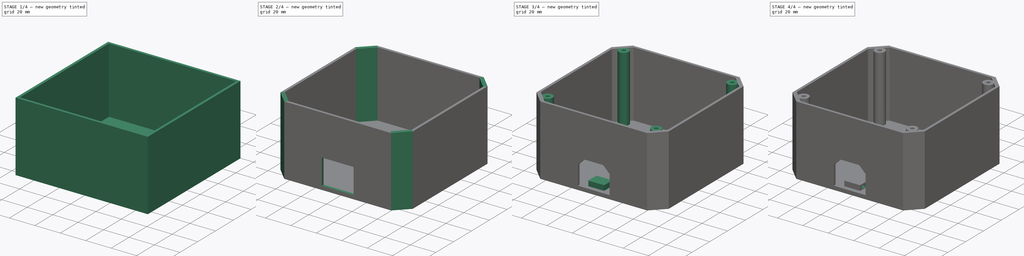
[diagram: build sequence overview — one tinted view per stage of 4, left to right]
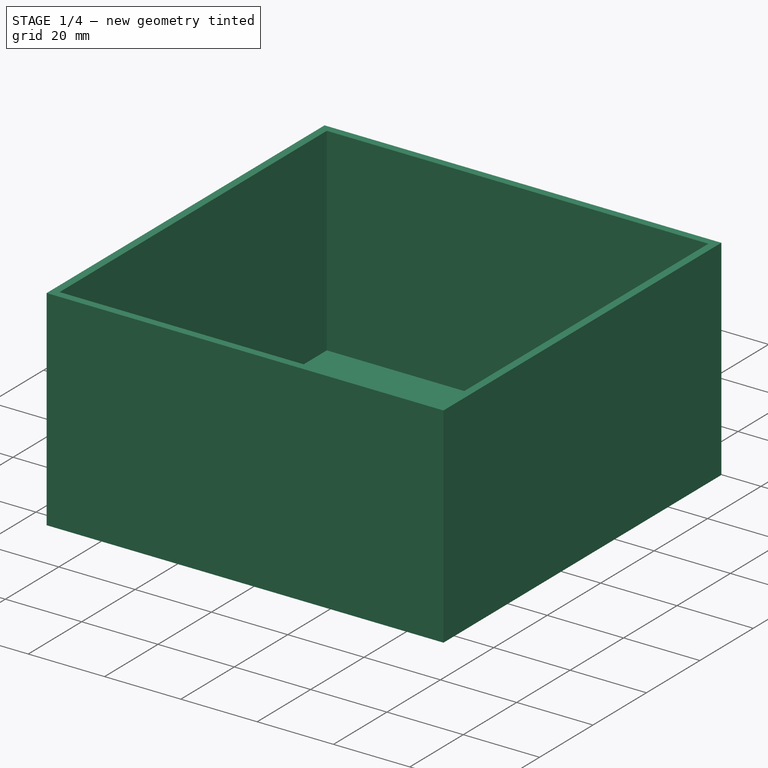
[diagram: stage 1 of 4 — iso view after this stage's code; geometry added in this stage tinted green]
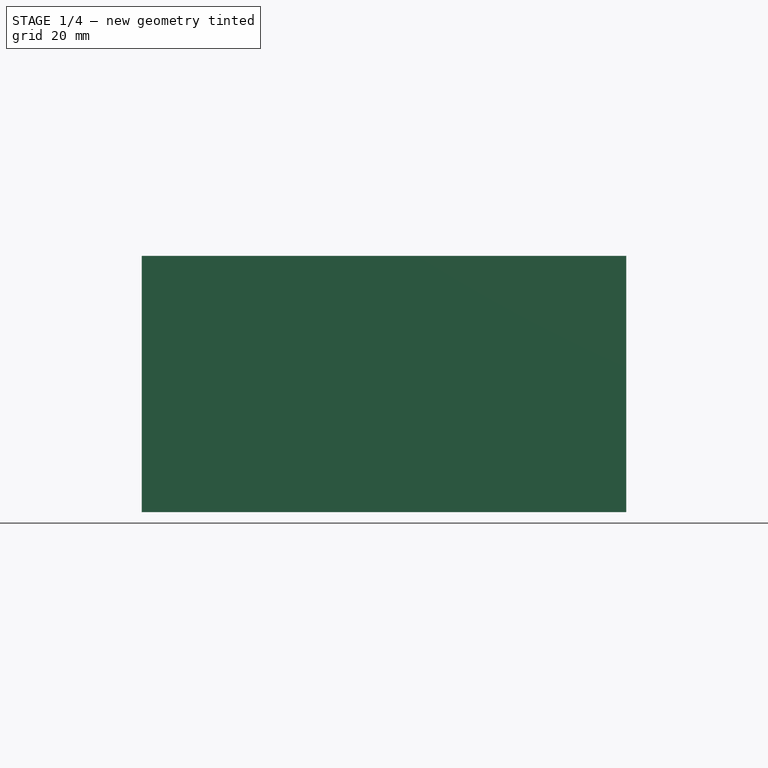
[diagram: stage 1 of 4 — front view after this stage's code; geometry added in this stage tinted green]
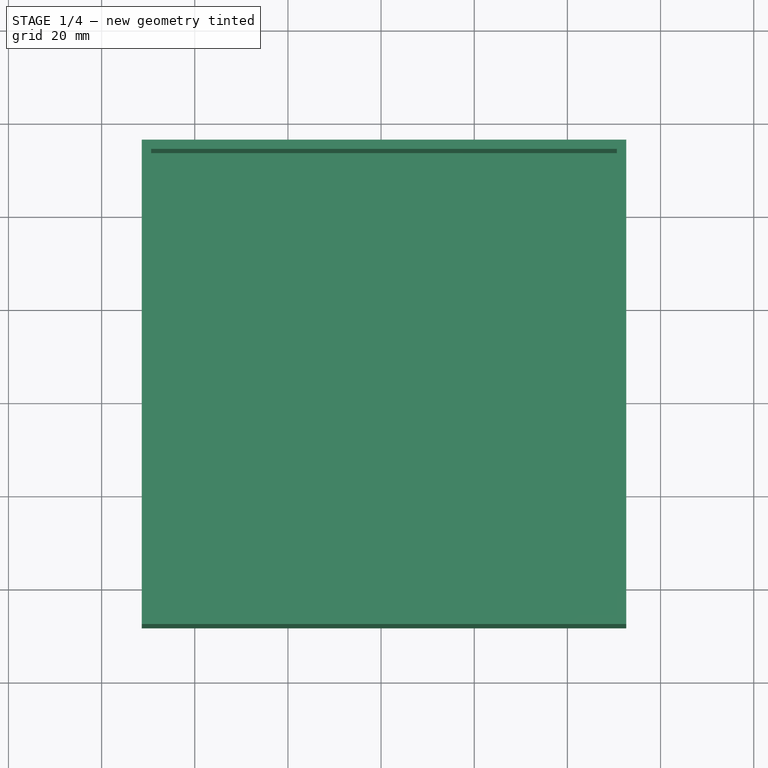
[diagram: stage 1 of 4 — top view after this stage's code; geometry added in this stage tinted green]
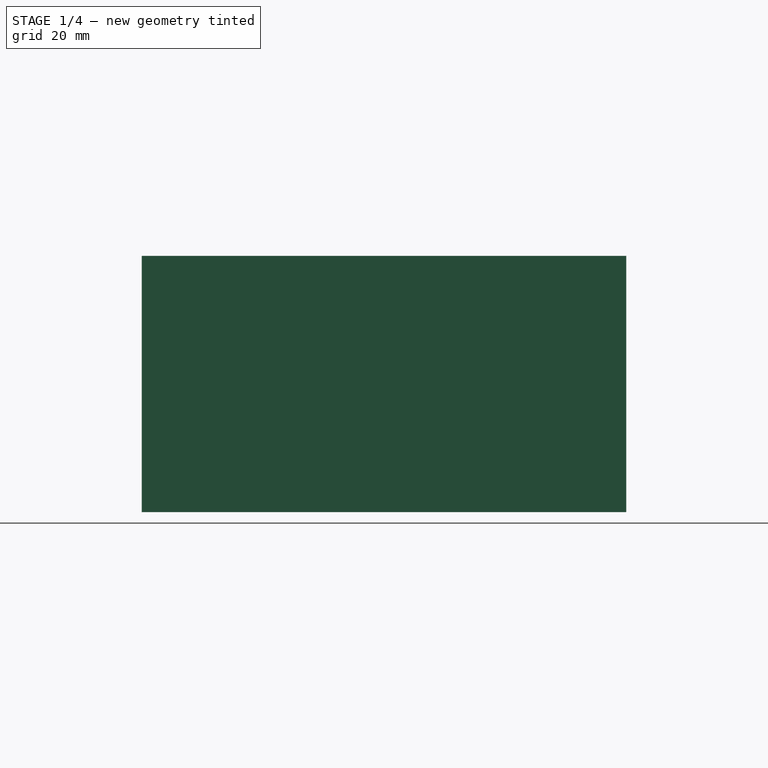
[diagram: stage 1 of 4 — right view after this stage's code; geometry added in this stage tinted green]
FCSTD DOCUMENT  (FreeCAD 0.16R5218 (Git))
Label: protecciones-mesaHerramientas
License: All rights reserved
LicenseURL: http://en.wikipedia.org/wiki/All_rights_reserved
objects: Sketcher::SketchObject×7, PartDesign::Pad×4, PartDesign::Pocket×3, PartDesign::Chamfer×2
note: 23 computed .brp shape members not serialized (recipe doc carries the construction recipe); baked Part::Feature solids carry a one-line shape summary decoded from their .brp

FEATURE [Sketcher::SketchObject] Sketch
  sketch-geometry (4):
    g0: LineSegment StartX=-51.3723 StartY=55.703 StartZ=0 EndX=52.6277 EndY=55.703 EndZ=0
    g1: LineSegment StartX=52.6277 StartY=55.703 StartZ=0 EndX=52.6277 EndY=-48.297 EndZ=0
    g2: LineSegment StartX=52.6277 StartY=-48.297 StartZ=0 EndX=-51.3723 EndY=-48.297 EndZ=0
    g3: LineSegment StartX=-51.3723 StartY=-48.297 StartZ=0 EndX=-51.3723 EndY=55.703 EndZ=0
  constraints (10):
    c: Coincident(g0,g1)
    c: Coincident(g1,g2)
    c: Coincident(g2,g3)
    c: Coincident(g3,g0)
    c: Horizontal(g0)
    c: Horizontal(g2)
    c: Vertical(g1)
    c: Vertical(g3)
    c: Equal(g1,g0)
    c: Distance(g0) = 104
FEATURE [PartDesign::Pad] Pad
  Length = 3
  Length2 = 100
  Sketch = -> Sketch
  Type = 0
FEATURE [Sketcher::SketchObject] Sketch001
  ExternalGeometry = -> [Pad]
  Placement = pos=(0,0,3) rot=(0,0,1;0rad)
  Support = -> Pad [Face6]
  sketch-geometry (10):
    g0: LineSegment StartX=52.6277 StartY=55.703 StartZ=0 EndX=-51.3723 EndY=55.703 EndZ=0
    g1: LineSegment StartX=-51.3723 StartY=55.703 StartZ=0 EndX=-51.3723 EndY=-48.297 EndZ=0
    g2: LineSegment StartX=-51.3723 StartY=-48.297 StartZ=0 EndX=52.6277 EndY=-48.297 EndZ=0
    g3: LineSegment StartX=52.6277 StartY=-48.297 StartZ=0 EndX=52.6277 EndY=55.703 EndZ=0
    g4: LineSegment StartX=-49.3723 StartY=-46.297 StartZ=0 EndX=50.6277 EndY=-46.297 EndZ=0
    g5: LineSegment StartX=50.6277 StartY=-46.297 StartZ=0 EndX=50.6277 EndY=53.703 EndZ=0
    g6: LineSegment StartX=50.6277 StartY=53.703 StartZ=0 EndX=-49.3723 EndY=53.703 EndZ=0
    g7: LineSegment StartX=-49.3723 StartY=53.703 StartZ=0 EndX=-49.3723 EndY=-46.297 EndZ=0
    g8: LineSegment [constr] StartX=52.6277 StartY=55.703 StartZ=0 EndX=50.6277 EndY=53.703 EndZ=0
    g9: LineSegment [constr] StartX=-51.3723 StartY=-48.297 StartZ=0 EndX=-49.3723 EndY=-46.297 EndZ=0
  constraints (26):
    c: Coincident(g0,g1)
    c: Coincident(g1,g2)
    c: Coincident(g2,g3)
    c: Coincident(g3,g0)
    c: Horizontal(g0)
    c: Horizontal(g2)
    c: Vertical(g1)
    c: Vertical(g3)
    c: Coincident(g0,g-4)
    c: Coincident(g1,g-3)
    c: Coincident(g4,g5)
    c: Coincident(g5,g6)
    c: Coincident(g6,g7)
    c: Coincident(g7,g4)
    c: Horizontal(g4)
    c: Horizontal(g6)
    c: Vertical(g5)
    c: Vertical(g7)
    c: Coincident(g8,g0)
    c: Coincident(g8,g5)
    c: Coincident(g9,g1)
    c: Coincident(g9,g4)
    c: Equal(g9,g8)
    c: Parallel(g9,g8)
    c: Equal(g5,g6)
    c: Distance(g5) = 100
FEATURE [PartDesign::Pad] Pad001
  Length = 52
  Length2 = 100
  Sketch = -> Sketch001
  Type = 0
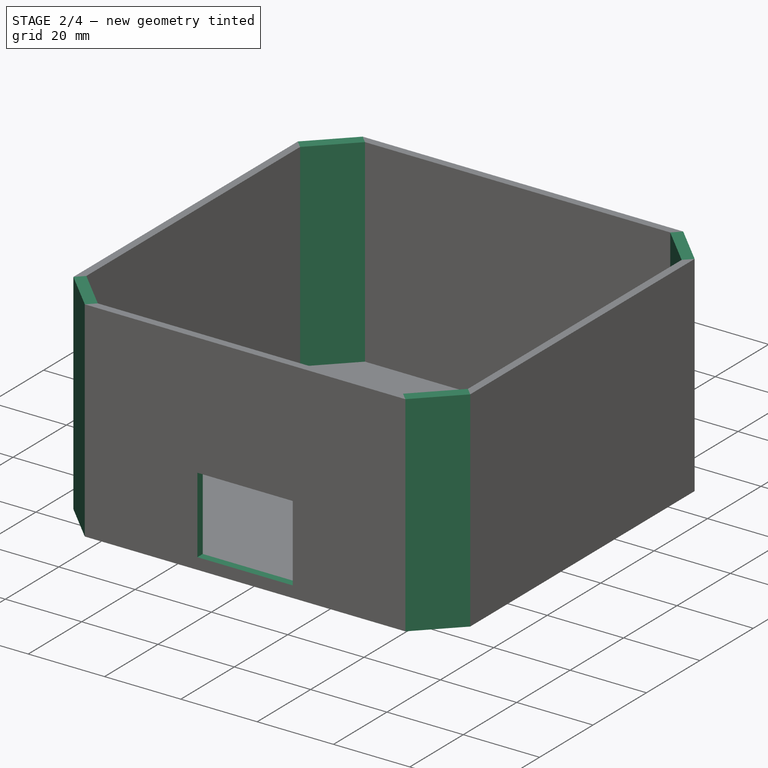
[diagram: stage 2 of 4 — iso view after this stage's code; geometry added in this stage tinted green]
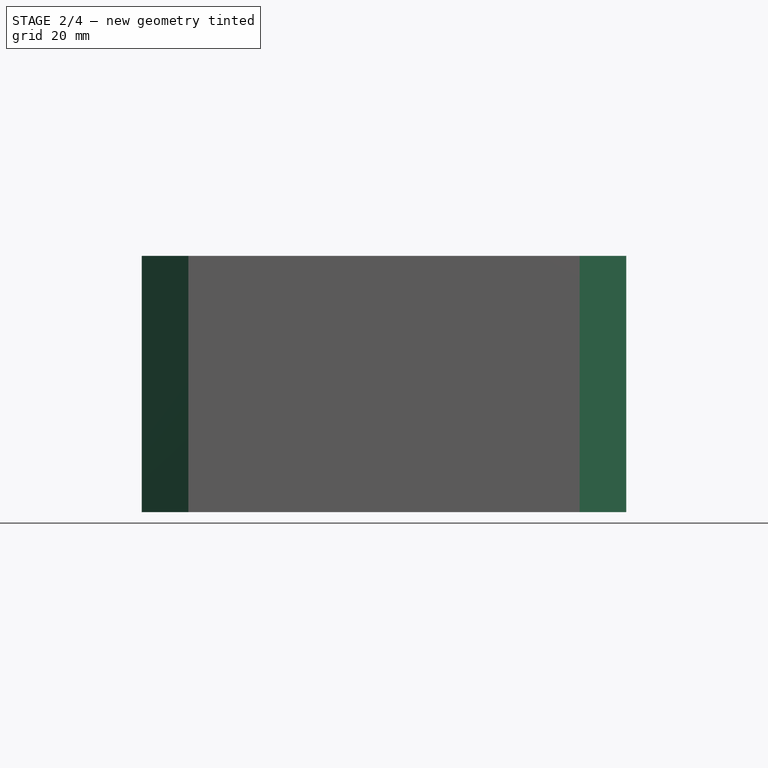
[diagram: stage 2 of 4 — front view after this stage's code; geometry added in this stage tinted green]
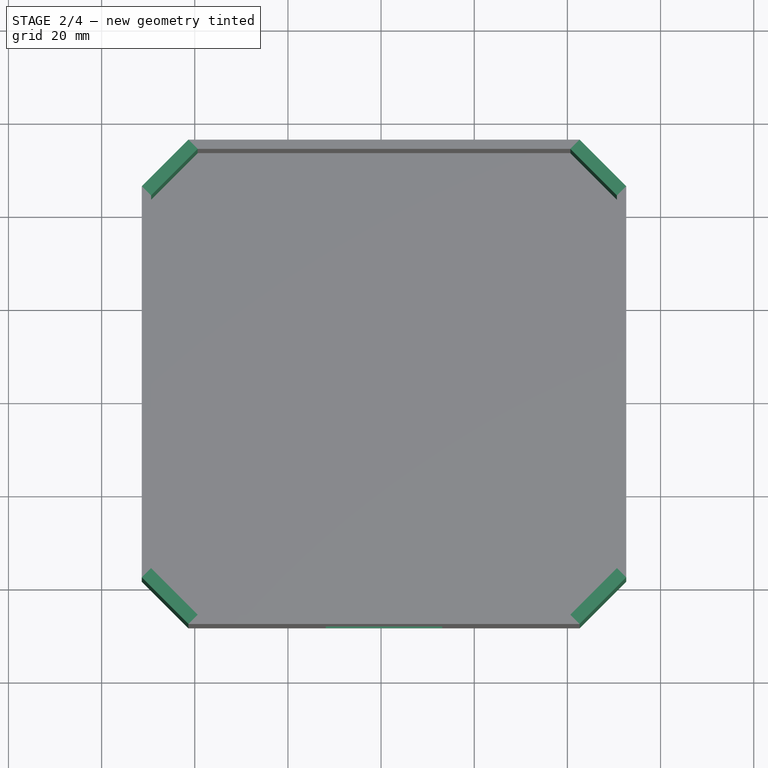
[diagram: stage 2 of 4 — top view after this stage's code; geometry added in this stage tinted green]
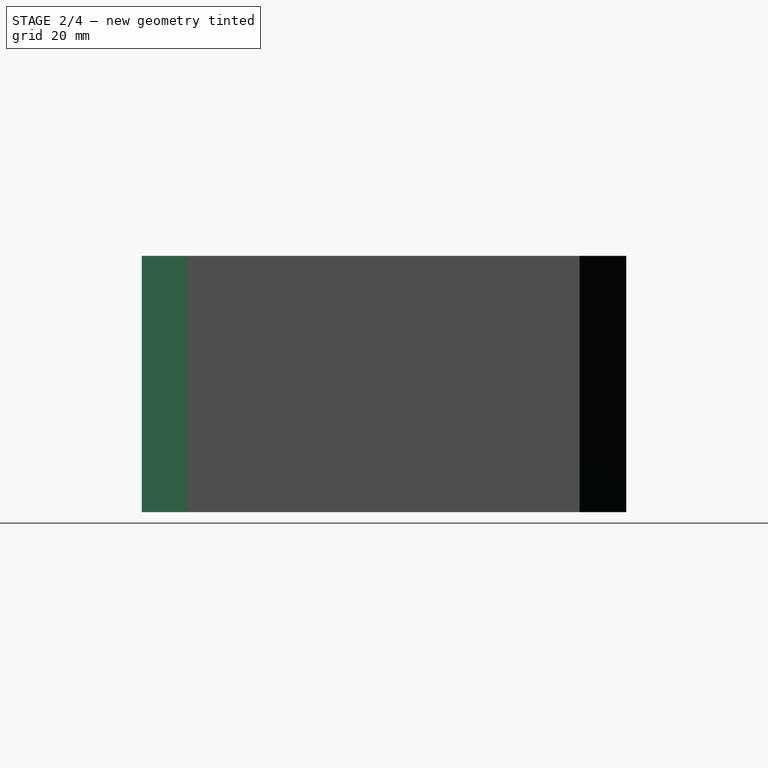
[diagram: stage 2 of 4 — right view after this stage's code; geometry added in this stage tinted green]
FEATURE [PartDesign::Chamfer] Chamfer
  Base = -> Pad001 [Edge17,Edge18,Edge24,Edge23,Edge15,Edge13,Edge9,Edge11]
  Size = 10
FEATURE [Sketcher::SketchObject] Sketch003
  ExternalGeometry = -> [Chamfer]
  Placement = pos=(0,-48.297,0) rot=(1,0,0;1.5708rad)
  Support = -> Chamfer [Face9]
  sketch-geometry (6):
    g0: LineSegment StartX=-11.8723 StartY=3 StartZ=0 EndX=13.1277 EndY=3 EndZ=0
    g1: LineSegment StartX=13.1277 StartY=3 StartZ=0 EndX=13.1277 EndY=23 EndZ=0
    g2: LineSegment StartX=13.1277 StartY=23 StartZ=0 EndX=-11.8723 EndY=23 EndZ=0
    g3: LineSegment StartX=-11.8723 StartY=23 StartZ=0 EndX=-11.8723 EndY=3 EndZ=0
    g4: LineSegment [constr] StartX=-39.3723 StartY=3 StartZ=0 EndX=-11.8723 EndY=23 EndZ=0
    g5: LineSegment [constr] StartX=13.1277 StartY=23 StartZ=0 EndX=40.6277 EndY=3 EndZ=0
  constraints (16):
    c: Coincident(g0,g1)
    c: Coincident(g1,g2)
    c: Coincident(g2,g3)
    c: Coincident(g3,g0)
    c: Horizontal(g0)
    c: Horizontal(g2)
    c: Vertical(g1)
    c: Vertical(g3)
    c: PointOnObject(g0,g-4)
    c: Coincident(g4,g-4)
    c: Coincident(g4,g2)
    c: Coincident(g5,g1)
    c: Coincident(g5,g-4)
    c: Equal(g5,g4)
    c: Distance(g1) = 20
    c: Distance(g2) = 25
FEATURE [PartDesign::Pocket] Pocket
  Length = 5
  Sketch = -> Sketch003
  Type = 0
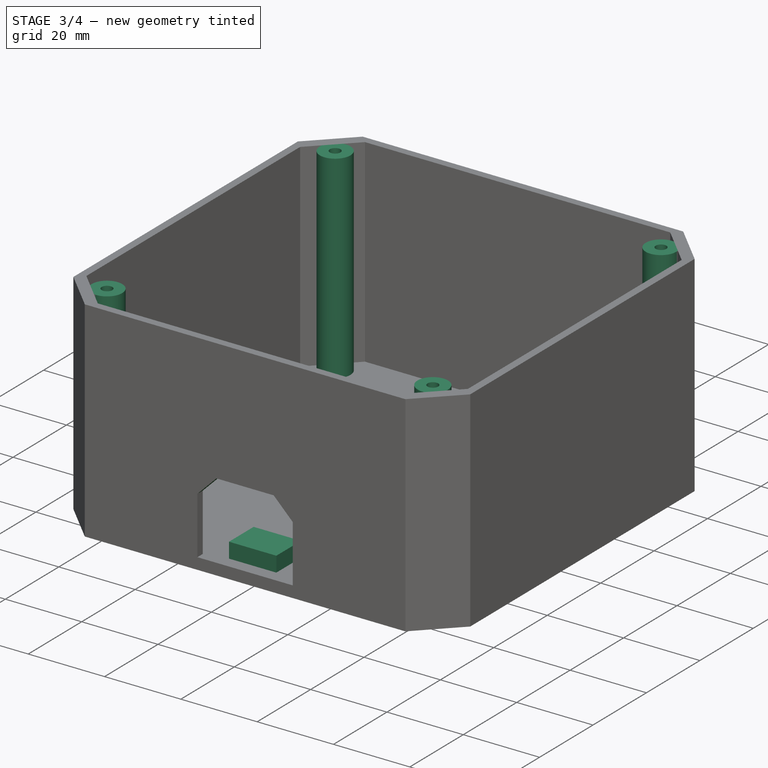
[diagram: stage 3 of 4 — iso view after this stage's code; geometry added in this stage tinted green]
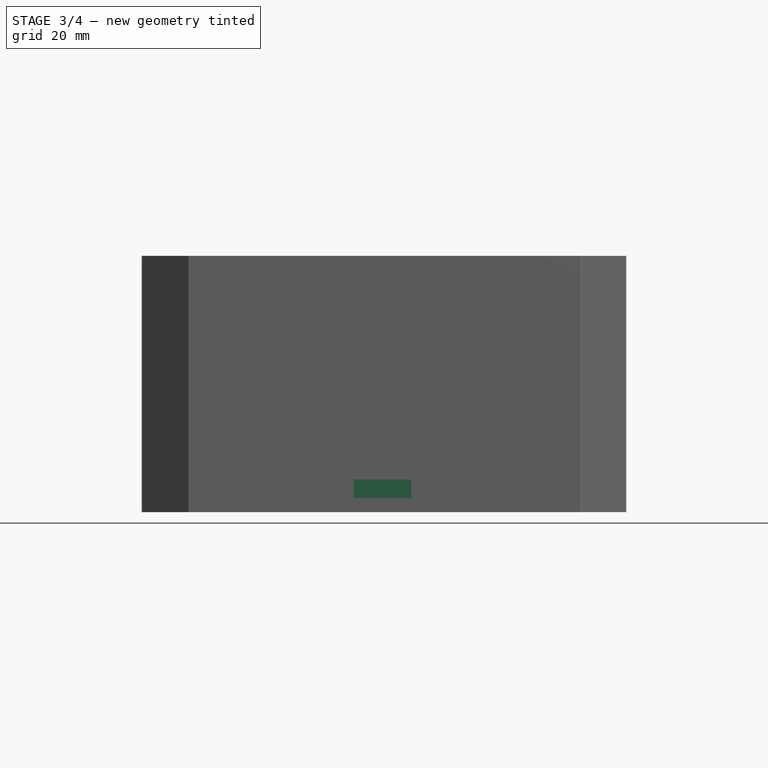
[diagram: stage 3 of 4 — front view after this stage's code; geometry added in this stage tinted green]
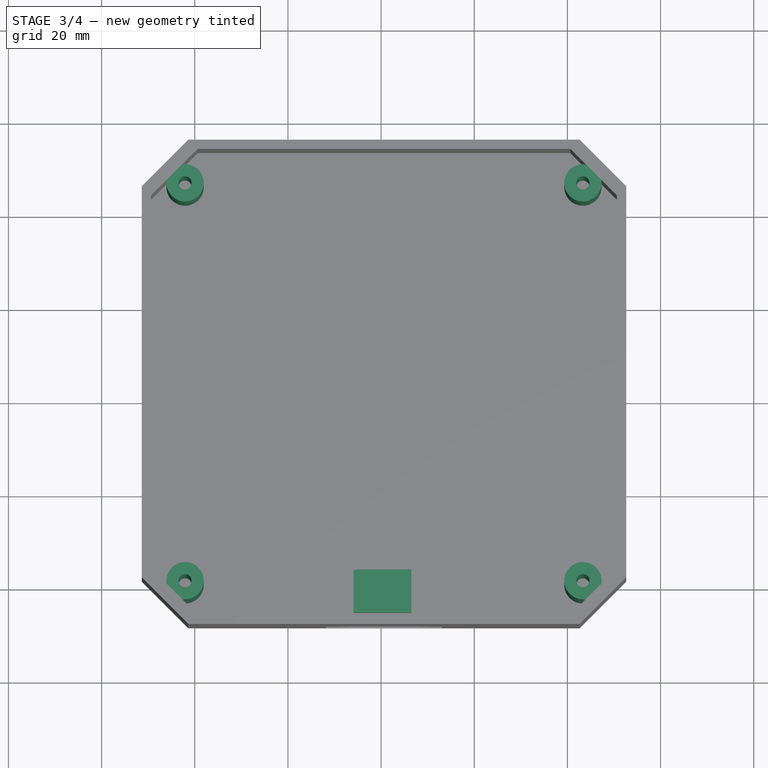
[diagram: stage 3 of 4 — top view after this stage's code; geometry added in this stage tinted green]
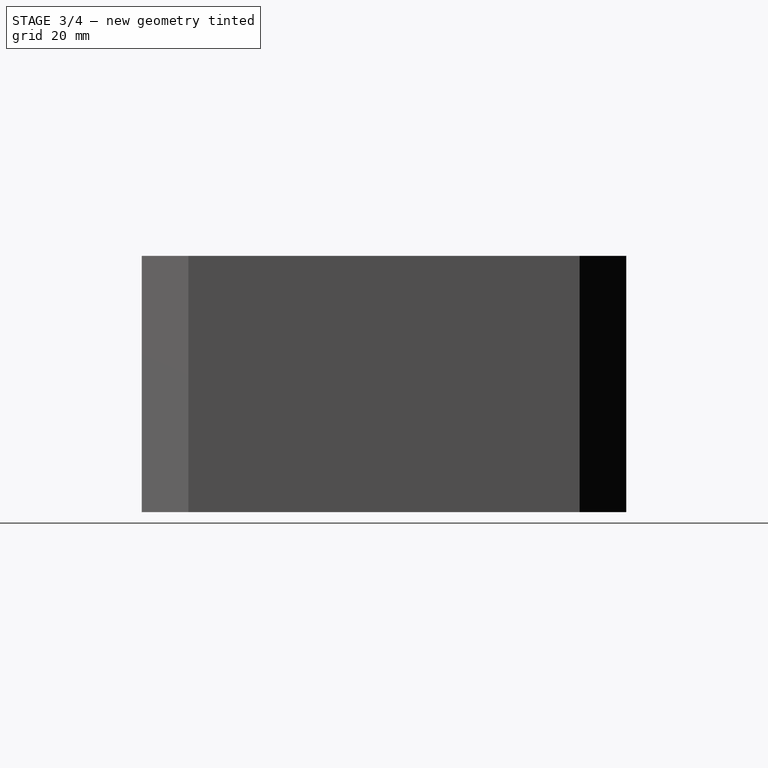
[diagram: stage 3 of 4 — right view after this stage's code; geometry added in this stage tinted green]
FEATURE [PartDesign::Chamfer] Chamfer001
  Base = -> Pocket [Edge57,Edge58]
  Size = 5
FEATURE [Sketcher::SketchObject] Sketch004
  Placement = pos=(0,0,3) rot=(0,0,1;0rad)
  Support = -> Chamfer001 [Face7]
  sketch-geometry (4):
    g0: LineSegment StartX=-5.89423 StartY=-45 StartZ=0 EndX=6.51059 EndY=-45 EndZ=0
    g1: LineSegment StartX=6.51059 StartY=-45 StartZ=0 EndX=6.51059 EndY=-35.7758 EndZ=0
    g2: LineSegment StartX=6.51059 StartY=-35.7758 StartZ=0 EndX=-5.89423 EndY=-35.7758 EndZ=0
    g3: LineSegment StartX=-5.89423 StartY=-35.7758 StartZ=0 EndX=-5.89423 EndY=-45 EndZ=0
  constraints (8):
    c: Coincident(g0,g1)
    c: Coincident(g1,g2)
    c: Coincident(g2,g3)
    c: Coincident(g3,g0)
    c: Horizontal(g0)
    c: Horizontal(g2)
    c: Vertical(g1)
    c: Vertical(g3)
FEATURE [PartDesign::Pad] Pad002
  Length = 4
  Length2 = 100
  Sketch = -> Sketch004
  Type = 0
FEATURE [Sketcher::SketchObject] Sketch005
  ExternalGeometry = -> [Pad002]
  Placement = pos=(0,0,3) rot=(0,0,1;0rad)
  Support = -> Pad002 [Face6]
  sketch-geometry (16):
    g0: LineSegment [constr] StartX=-49.3723 StartY=43.703 StartZ=0 EndX=-42.0737 EndY=46.4044 EndZ=0
    g1: LineSegment [constr] StartX=-42.0737 StartY=46.4044 StartZ=0 EndX=-39.3723 EndY=53.703 EndZ=0
    g2: LineSegment [constr] StartX=40.6277 StartY=53.703 StartZ=0 EndX=43.3291 EndY=46.4044 EndZ=0
    g3: LineSegment [constr] StartX=43.3291 StartY=46.4044 StartZ=0 EndX=50.6277 EndY=43.703 EndZ=0
    g4: LineSegment [constr] StartX=50.6277 StartY=-36.297 StartZ=0 EndX=43.3291 EndY=-38.9984 EndZ=0
    g5: LineSegment [constr] StartX=40.6277 StartY=-46.297 StartZ=0 EndX=43.3291 EndY=-38.9984 EndZ=0
    g6: LineSegment [constr] StartX=-39.3723 StartY=-46.297 StartZ=0 EndX=-42.0737 EndY=-38.9984 EndZ=0
    g7: LineSegment [constr] StartX=-49.3723 StartY=-36.297 StartZ=0 EndX=-42.0737 EndY=-38.9984 EndZ=0
    g8: Circle CenterX=-42.0737 CenterY=46.4044 CenterZ=0 NormalX=0 NormalY=0 NormalZ=1 Radius=4
    g9: Circle CenterX=-42.0737 CenterY=46.4044 CenterZ=0 NormalX=0 NormalY=0 NormalZ=1 Radius=1.4
    g10: Circle CenterX=43.3291 CenterY=46.4044 CenterZ=0 NormalX=0 NormalY=0 NormalZ=1 Radius=4
    g11: Circle CenterX=43.3291 CenterY=46.4044 CenterZ=0 NormalX=0 NormalY=0 NormalZ=1 Radius=1.4
    g12: Circle CenterX=-42.0737 CenterY=-38.9984 CenterZ=0 NormalX=0 NormalY=0 NormalZ=1 Radius=4
    g13: Circle CenterX=-42.0737 CenterY=-38.9984 CenterZ=0 NormalX=0 NormalY=0 NormalZ=1 Radius=1.4
    g14: Circle CenterX=43.3291 CenterY=-38.9984 CenterZ=0 NormalX=0 NormalY=0 NormalZ=1 Radius=4
    g15: Circle CenterX=43.3291 CenterY=-38.9984 CenterZ=0 NormalX=0 NormalY=0 NormalZ=1 Radius=1.4
  constraints (35):
    c: Coincident(g0,g-3)
    c: Coincident(g1,g0)
    c: Coincident(g1,g-3)
    c: Coincident(g2,g-5)
    c: Coincident(g3,g2)
    c: Coincident(g3,g-5)
    c: Coincident(g4,g-7)
    c: Coincident(g5,g-7)
    c: Coincident(g5,g4)
    c: Coincident(g6,g-6)
    c: Coincident(g7,g-6)
    c: Coincident(g7,g6)
    c: Equal(g1,g0)
    c: Equal(g0,g2)
    c: Equal(g2,g3)
    c: Equal(g3,g4)
    c: Equal(g4,g5)
    c: Equal(g5,g6)
    c: Equal(g6,g7)
    c: Coincident(g9,g0)
    c: Coincident(g10,g2)
    c: Coincident(g11,g2)
    c: Coincident(g12,g6)
    c: Coincident(g13,g6)
    c: Coincident(g14,g4)
    c: Coincident(g15,g4)
    c: Coincident(g8,g0)
    c: Radius(g12) = 4
    c: Equal(g12,g8)
    c: Equal(g12,g10)
    c: Equal(g12,g14)
    c: Radius(g9) = 1.4
    c: Equal(g9,g11)
    c: Equal(g9,g15)
    c: Equal(g9,g13)
FEATURE [PartDesign::Pad] Pad003
  Length = 10
  Length2 = 100
  Sketch = -> Sketch005
  Type = 3
  UpToFace = -> Pad002 [Face21]
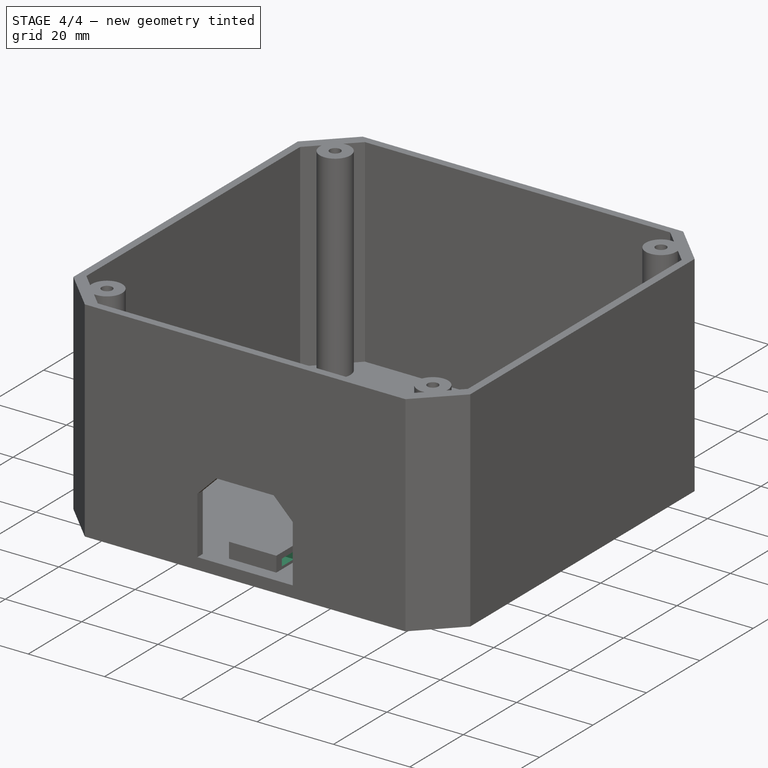
[diagram: stage 4 of 4 — iso view after this stage's code; geometry added in this stage tinted green]
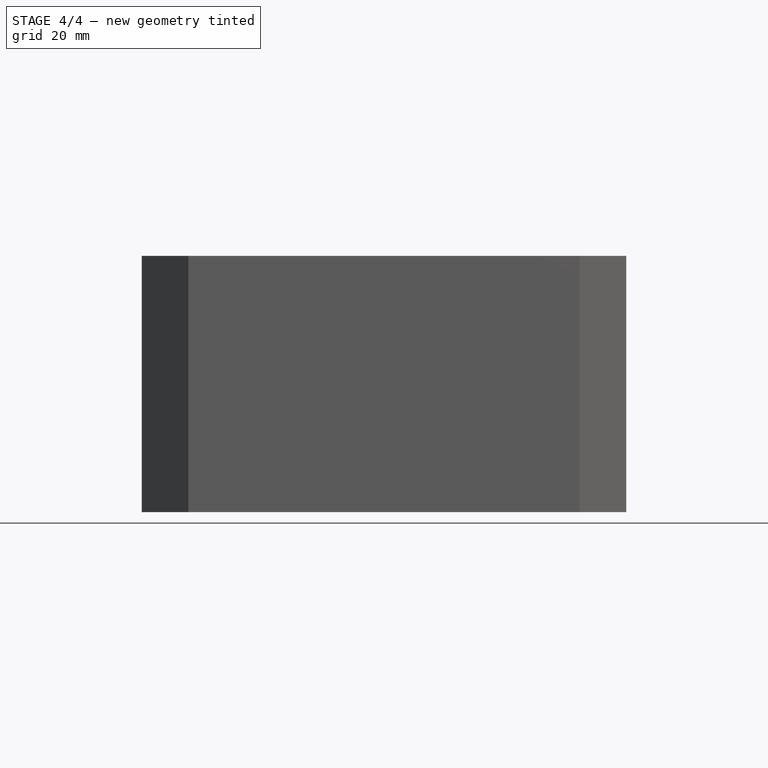
[diagram: stage 4 of 4 — front view after this stage's code; geometry added in this stage tinted green]
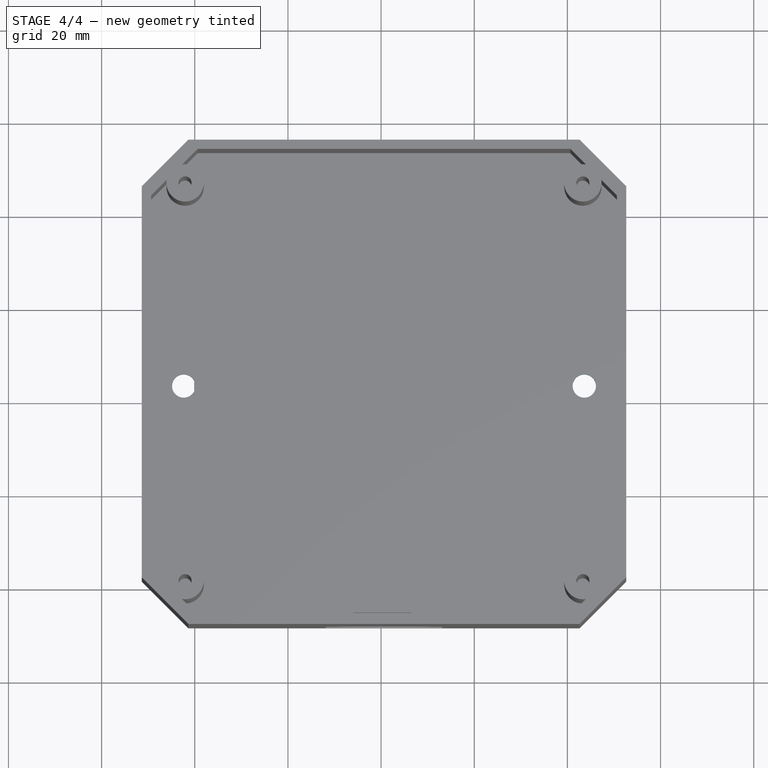
[diagram: stage 4 of 4 — top view after this stage's code; geometry added in this stage tinted green]
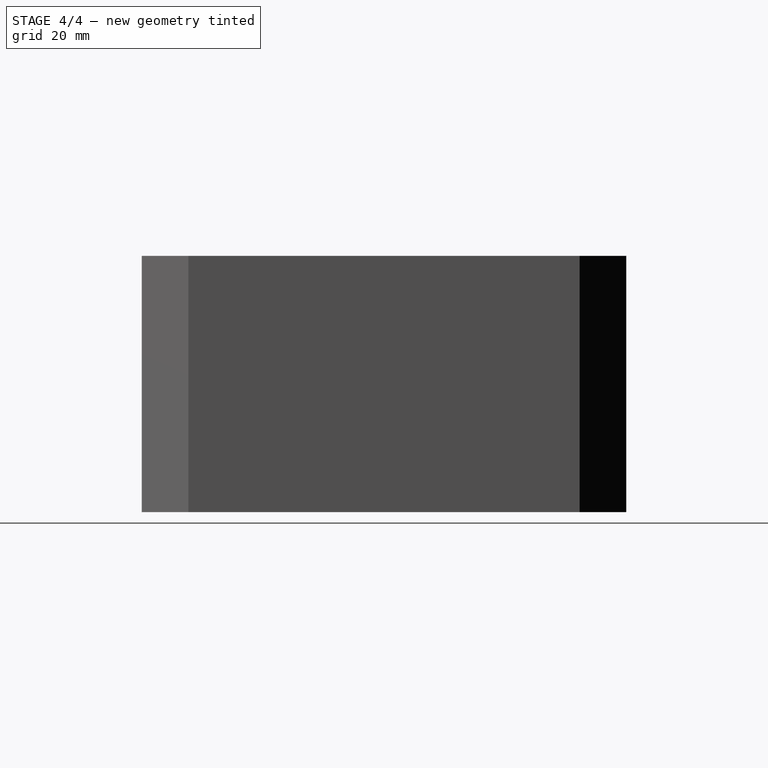
[diagram: stage 4 of 4 — right view after this stage's code; geometry added in this stage tinted green]
FEATURE [Sketcher::SketchObject] Sketch002
  ExternalGeometry = -> [Chamfer]
  Placement = pos=(0,0,3) rot=(0,0,1;0rad)
  Support = -> Pad003 [Face6]
  sketch-geometry (7):
    g0: LineSegment [constr] StartX=50.6277 StartY=43.703 StartZ=0 EndX=0.627717 EndY=3.70303 EndZ=0
    g1: LineSegment [constr] StartX=0.627717 StartY=3.70303 StartZ=0 EndX=-49.3723 EndY=-36.297 EndZ=0
    g2: LineSegment [constr] StartX=-49.3723 StartY=3.70303 StartZ=0 EndX=-42.3723 EndY=3.70303 EndZ=0
    g3: LineSegment [constr] StartX=-42.3723 StartY=3.70303 StartZ=0 EndX=43.6277 EndY=3.70303 EndZ=0
    g4: LineSegment [constr] StartX=43.6277 StartY=3.70303 StartZ=0 EndX=50.6277 EndY=3.70303 EndZ=0
    g5: Circle CenterX=-42.3723 CenterY=3.70303 CenterZ=0 NormalX=0 NormalY=0 NormalZ=1 Radius=2.5
    g6: Circle CenterX=43.6277 CenterY=3.70303 CenterZ=0 NormalX=0 NormalY=0 NormalZ=1 Radius=2.5
  constraints (19):
    c: Coincident(g0,g-5)
    c: Coincident(g1,g0)
    c: Coincident(g1,g-6)
    c: Equal(g1,g0)
    c: Parallel(g1,g0)
    c: PointOnObject(g2,g-6)
    c: Horizontal(g2)
    c: Coincident(g2,g3)
    c: Horizontal(g3)
    c: Coincident(g3,g4)
    c: PointOnObject(g4,g-5)
    c: Horizontal(g4)
    c: Equal(g2,g4)
    c: PointOnObject(g0,g3)
    c: Coincident(g5,g2)
    c: Coincident(g6,g3)
    c: Radius(g5) = 2.5
    c: Equal(g6,g5)
    c: Distance(g2) = 7
FEATURE [PartDesign::Pocket] Pocket001
  Length = 5
  Sketch = -> Sketch002
  Type = 0
FEATURE [Sketcher::SketchObject] Sketch006
  Placement = pos=(6.51059,0,0) rot=(0.57735,0.57735,0.57735;2.0944rad)
  Support = -> Pocket001 [Face3]
  sketch-geometry (4):
    g0: LineSegment StartX=-42.9147 StartY=3.67341 StartZ=0 EndX=-38.4219 EndY=3.67341 EndZ=0
    g1: LineSegment StartX=-38.4219 StartY=3.67341 StartZ=0 EndX=-38.4219 EndY=5.5114 EndZ=0
    g2: LineSegment StartX=-38.4219 StartY=5.5114 StartZ=0 EndX=-42.9147 EndY=5.5114 EndZ=0
    g3: LineSegment StartX=-42.9147 StartY=5.5114 StartZ=0 EndX=-42.9147 EndY=3.67341 EndZ=0
  constraints (8):
    c: Coincident(g0,g1)
    c: Coincident(g1,g2)
    c: Coincident(g2,g3)
    c: Coincident(g3,g0)
    c: Horizontal(g0)
    c: Horizontal(g2)
    c: Vertical(g1)
    c: Vertical(g3)
FEATURE [PartDesign::Pocket] Pocket002
  Length = 25
  Sketch = -> Sketch006
  Type = 0
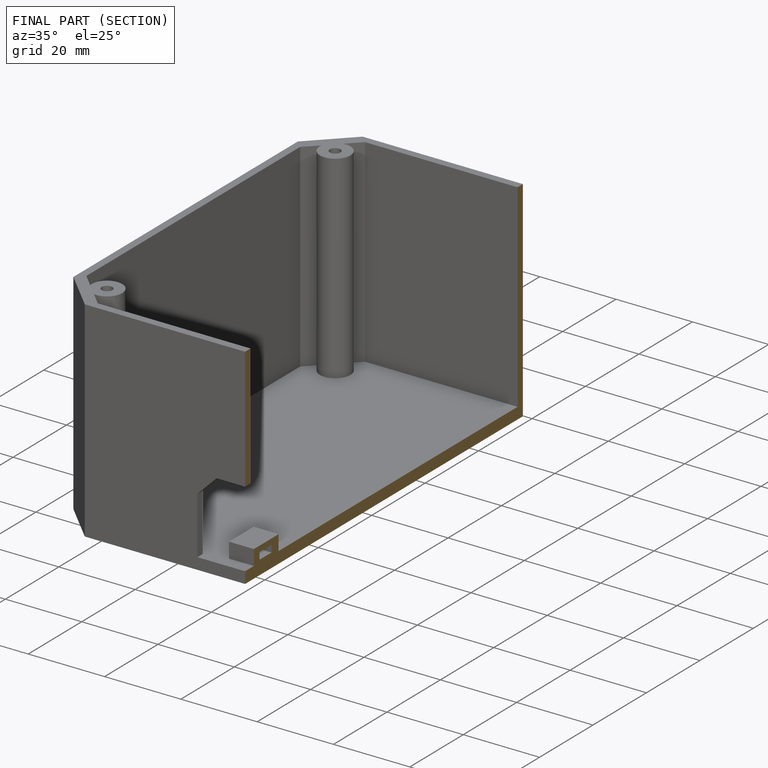
[diagram: finished part — half-section view (interior)]
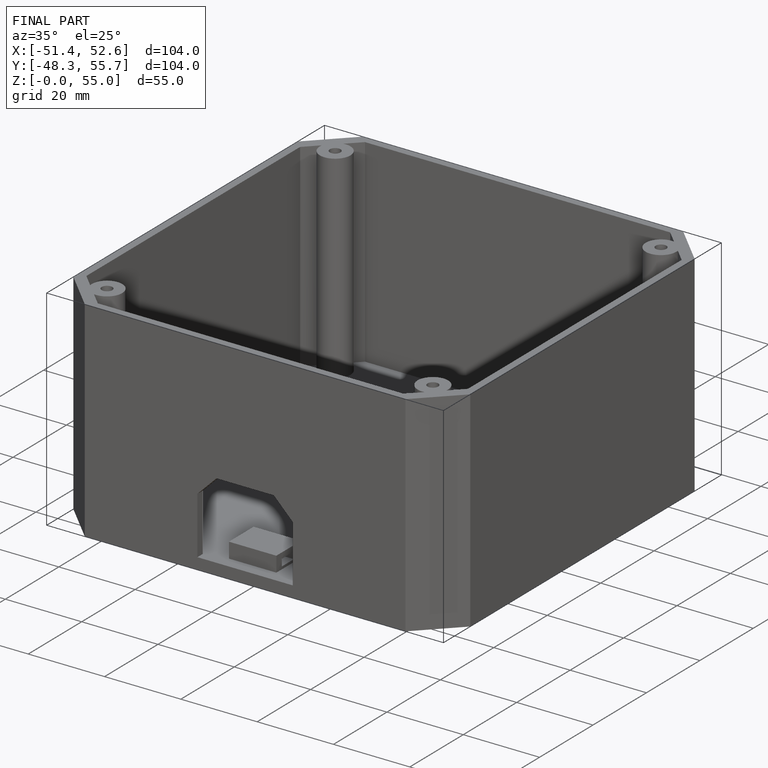
[diagram: finished part — iso view with bounding-box wireframe]
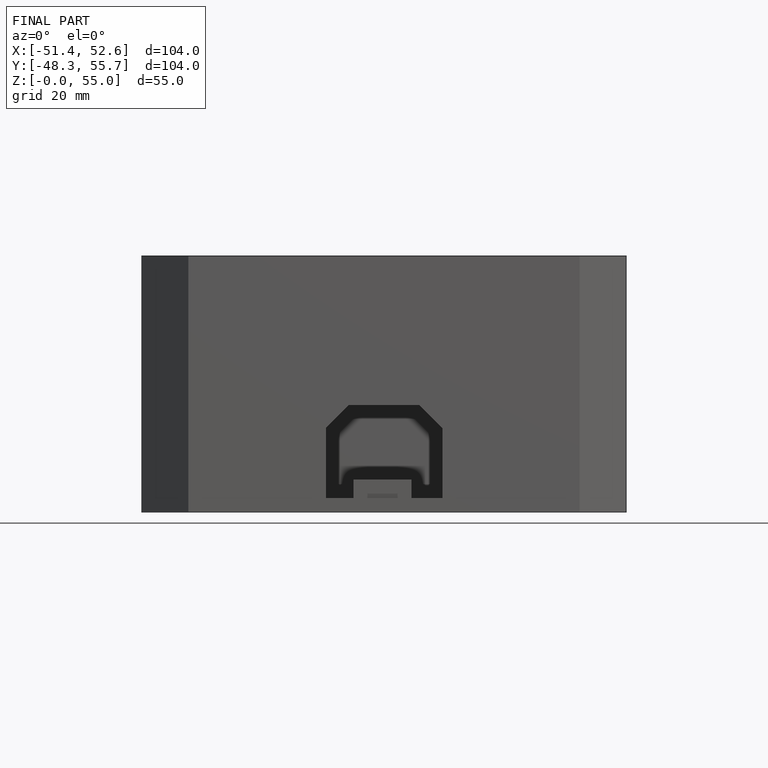
[diagram: finished part — front view with bounding-box wireframe]
